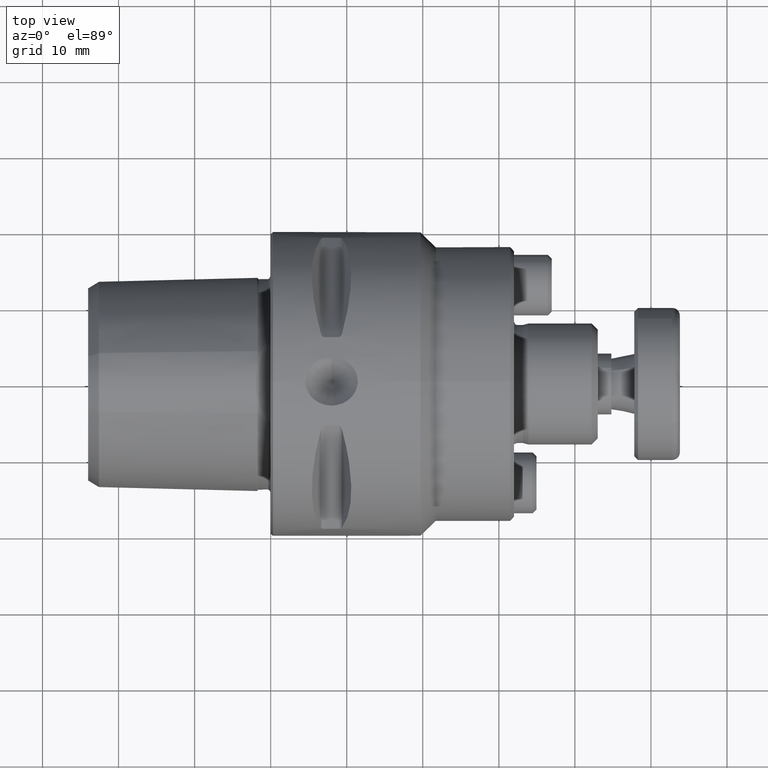
[diagram: clean part render]
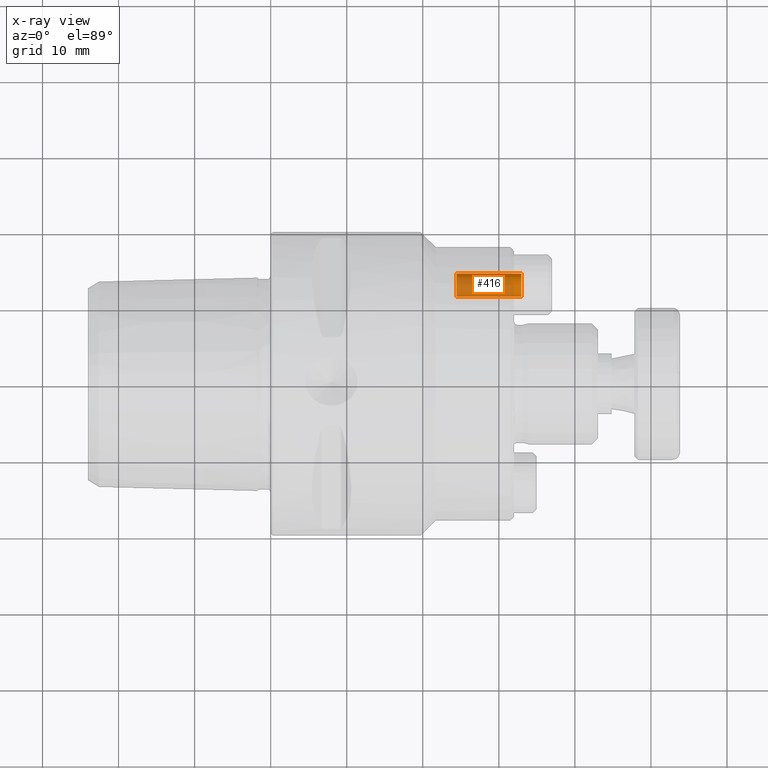
[diagram: x-ray — body ghosted, one internal face saturated and labeled with its STEP entity id]
A machine part, top view, then the same camera in x-ray: the body is ghosted and one INTERNAL B-rep face — a face not visible from any outside direction — is saturated and labeled: STEP entity #416.
In plain terms, the highlighted cylindrical surface (bore or boss wall) has radius 1.5 mm, axis along (-1, -0, -0).
Its self-contained STEP definition (entity closure, byte-faithful):
#416 = ADVANCED_FACE( '', ( #914, #915 ), #916, .T. );
#914 = FACE_OUTER_BOUND( '', #1585, .T. );
#915 = FACE_OUTER_BOUND( '', #1586, .T. );
#916 = CYLINDRICAL_SURFACE( '', #1587, 1.50000000000000 );
#1585 = EDGE_LOOP( '', ( #2401 ) );
#1586 = EDGE_LOOP( '', ( #2402 ) );
#1587 = AXIS2_PLACEMENT_3D( '', #2403, #2404, #2405 );
#2401 = ORIENTED_EDGE( '', *, *, #3410, .T. );
#2402 = ORIENTED_EDGE( '', *, *, #3567, .T. );
#2403 = CARTESIAN_POINT( '', ( -7.55000000000000, 0.000000000000000, 0.000000000000000 ) );
#2404 = DIRECTION( '', ( 1.00000000000000, -0.000000000000000, -0.000000000000000 ) );
#2405 = DIRECTION( '', ( 0.000000000000000, 0.000000000000000, 1.00000000000000 ) );
#3410 = EDGE_CURVE( '', #3905, #3905, #3906, .T. );
#3567 = EDGE_CURVE( '', #4165, #4165, #4166, .T. );
#3905 = VERTEX_POINT( '', #4607 );
#3906 = CIRCLE( '', #4608, 1.50000000000000 );
#4165 = VERTEX_POINT( '', #5276 );
#4166 = CIRCLE( '', #5277, 1.50000000000000 );
#4607 = CARTESIAN_POINT( '', ( 7.05000000000000, 0.000000000000000, 1.50000000000000 ) );
#4608 = AXIS2_PLACEMENT_3D( '', #6093, #6094, #6095 );
#5276 = CARTESIAN_POINT( '', ( -1.45000000000000, 0.000000000000000, 1.50000000000000 ) );
#5277 = AXIS2_PLACEMENT_3D( '', #6295, #6296, #6297 );
#6093 = CARTESIAN_POINT( '', ( 7.05000000000000, 0.000000000000000, 0.000000000000000 ) );
#6094 = DIRECTION( '', ( -1.00000000000000, 0.000000000000000, 0.000000000000000 ) );
#6095 = DIRECTION( '', ( 0.000000000000000, 0.000000000000000, 1.00000000000000 ) );
#6295 = CARTESIAN_POINT( '', ( -1.45000000000000, 0.000000000000000, 0.000000000000000 ) );
#6296 = DIRECTION( '', ( 1.00000000000000, 0.000000000000000, -0.000000000000000 ) );
#6297 = DIRECTION( '', ( 0.000000000000000, 0.000000000000000, 1.00000000000000 ) );